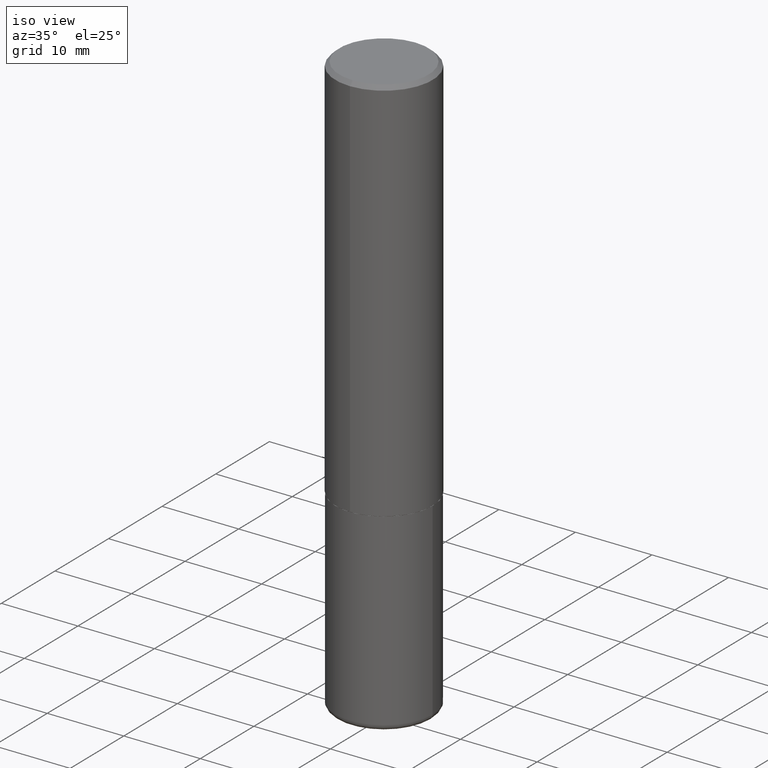
[diagram: clean part render]
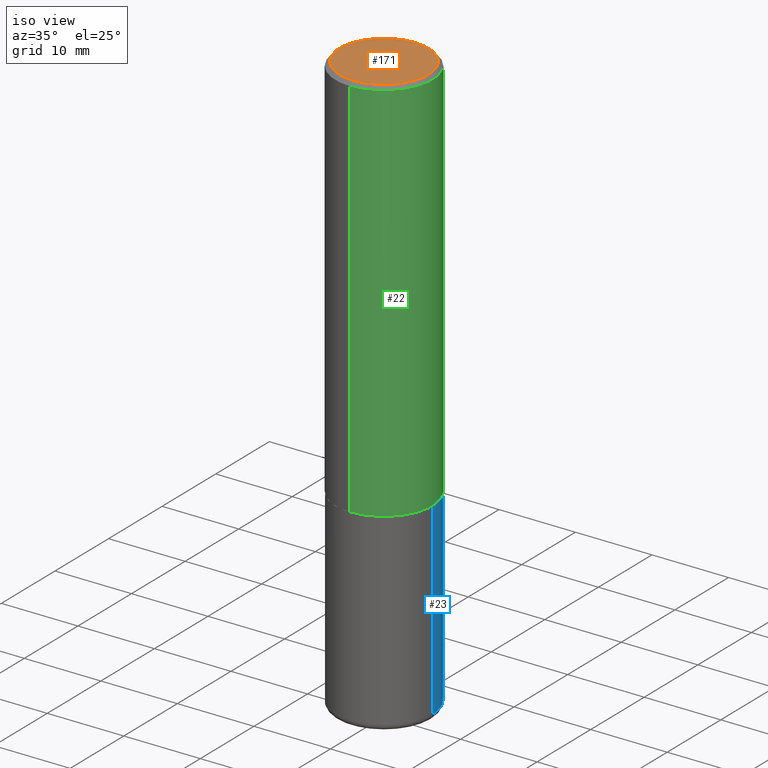
[diagram: same view with three faces highlighted in distinct colors, each labeled with its STEP entity id]
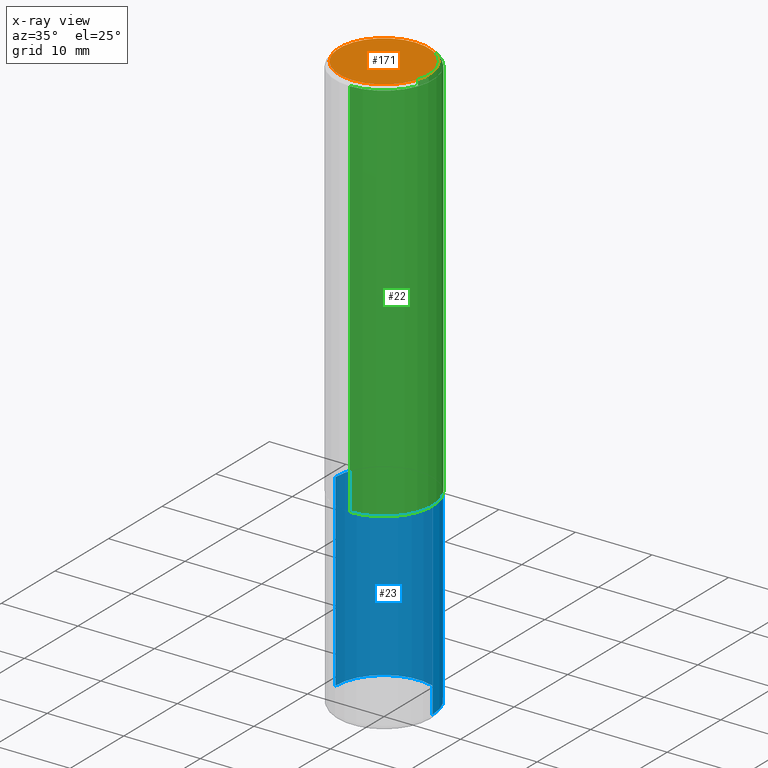
[diagram: x-ray of the same camera — body ghosted, the three highlighted faces saturated]
A machine part, iso view with three faces highlighted in distinct colors.
The next image is the same camera in x-ray (body ghosted, the three faces saturated) — at least one of them is partly hidden behind the body in this view.
Their STEP definitions:

[orange] entity #171 — the highlighted planar face has unit normal (0, -0, -1).
#13 = CARTESIAN_POINT ( 'NONE',  ( 1.606081415867842645E-15, 0.2300000000000002043, -8.970083069684097739E-16 ) ) ;
#34 = ORIENTED_EDGE ( 'NONE', *, *, #197, .T. ) ;
#42 = AXIS2_PLACEMENT_3D ( 'NONE', #277, #332, #297 ) ;
#52 = EDGE_CURVE ( 'NONE', #415, #338, #181, .T. ) ;
#77 = DIRECTION ( 'NONE',  ( -6.982962677686265922E-15, -1.000000000000000000, 3.492005897558592316E-15 ) ) ;
#93 = PLANE ( 'NONE',  #189 ) ;
#97 = CARTESIAN_POINT ( 'NONE',  ( 1.675911042644704760E-15, 0.2300000000000002043, -9.908552574983423647E-16 ) ) ;
#111 = CARTESIAN_POINT ( 'NONE',  ( 4.589308283664181382E-45, -6.554282094368286806E-31, -1.876939010598653295E-16 ) ) ;
#118 = DIRECTION ( 'NONE',  ( 6.982962677686265922E-15, 1.000000000000000000, -3.492005897558592710E-15 ) ) ;
#143 = DIRECTION ( 'NONE',  ( 2.445102508791913971E-29, -3.492005897558592710E-15, -1.000000000000000000 ) ) ;
#164 = DIRECTION ( 'NONE',  ( -2.445102508791914532E-29, 3.492005897558592316E-15, 1.000000000000000000 ) ) ;
#171 = ADVANCED_FACE ( 'NONE', ( #363 ), #93, .F. ) ;
#181 = CIRCLE ( 'NONE', #339, 0.2300000000000002043 ) ;
#189 = AXIS2_PLACEMENT_3D ( 'NONE', #13, #143, #118 ) ;
#197 = EDGE_CURVE ( 'NONE', #338, #415, #352, .T. ) ;
#253 = CARTESIAN_POINT ( 'NONE',  ( -1.646519519465167954E-15, -0.2300000000000002043, 6.154674553786116072E-16 ) ) ;
#277 = CARTESIAN_POINT ( 'NONE',  ( 4.589308283664181382E-45, -6.554282094368286806E-31, -1.876939010598653295E-16 ) ) ;
#297 = DIRECTION ( 'NONE',  ( -6.982962677686265922E-15, -1.000000000000000000, 3.492005897558592316E-15 ) ) ;
#310 = EDGE_LOOP ( 'NONE', ( #313, #34 ) ) ;
#313 = ORIENTED_EDGE ( 'NONE', *, *, #52, .T. ) ;
#332 = DIRECTION ( 'NONE',  ( -2.445102508791914532E-29, 3.492005897558592316E-15, 1.000000000000000000 ) ) ;
#338 = VERTEX_POINT ( 'NONE', #253 ) ;
#339 = AXIS2_PLACEMENT_3D ( 'NONE', #111, #164, #77 ) ;
#352 = CIRCLE ( 'NONE', #42, 0.2300000000000002043 ) ;
#363 = FACE_OUTER_BOUND ( 'NONE', #310, .T. ) ;
#415 = VERTEX_POINT ( 'NONE', #97 ) ;

[blue] entity #23 — the highlighted cylindrical surface (partial cylindrical patch) has radius 6.35 mm, axis along (-0, 0, 1).
#2 = AXIS2_PLACEMENT_3D ( 'NONE', #237, #38, #359 ) ;
#23 = ADVANCED_FACE ( 'NONE', ( #78 ), #294, .T. ) ;
#25 = AXIS2_PLACEMENT_3D ( 'NONE', #49, #354, #387 ) ;
#26 = CARTESIAN_POINT ( 'NONE',  ( -0.2500000000000000000, -6.899974287624967004E-15, -2.000000000000000444 ) ) ;
#30 = VERTEX_POINT ( 'NONE', #388 ) ;
#38 = DIRECTION ( 'NONE',  ( -2.445468806185136597E-29, 3.491481338843145583E-15, 1.000000000000000000 ) ) ;
#39 = EDGE_CURVE ( 'NONE', #30, #315, #384, .T. ) ;
#41 = EDGE_CURVE ( 'NONE', #167, #323, #158, .T. ) ;
#49 = CARTESIAN_POINT ( 'NONE',  ( 4.890937612370273754E-29, -6.982962677686291954E-15, -2.000000000000000444 ) ) ;
#64 = ORIENTED_EDGE ( 'NONE', *, *, #41, .F. ) ;
#69 = LINE ( 'NONE', #216, #79 ) ;
#78 = FACE_OUTER_BOUND ( 'NONE', #353, .T. ) ;
#79 = VECTOR ( 'NONE', #136, 39.37007874015748143 ) ;
#82 = DIRECTION ( 'NONE',  ( -2.445468806185136597E-29, 3.491481338843145583E-15, 1.000000000000000000 ) ) ;
#96 = ORIENTED_EDGE ( 'NONE', *, *, #39, .T. ) ;
#128 = CARTESIAN_POINT ( 'NONE',  ( -0.2500000000000000000, 1.776356839400250465E-15, -1.229733772563726445E-29 ) ) ;
#136 = DIRECTION ( 'NONE',  ( -2.445468806185136877E-29, 3.491481338843145188E-15, 1.000000000000000000 ) ) ;
#158 = CIRCLE ( 'NONE', #25, 0.2500000000000000000 ) ;
#166 = ORIENTED_EDGE ( 'NONE', *, *, #305, .T. ) ;
#167 = VERTEX_POINT ( 'NONE', #241 ) ;
#180 = AXIS2_PLACEMENT_3D ( 'NONE', #391, #82, #229 ) ;
#183 = LINE ( 'NONE', #128, #248 ) ;
#216 = CARTESIAN_POINT ( 'NONE',  ( 0.2500000000000000000, -1.745740669421566678E-15, 1.219044193948983948E-29 ) ) ;
#229 = DIRECTION ( 'NONE',  ( 1.000000000000000000, -6.982962677686266711E-15, 4.876176775795935793E-29 ) ) ;
#237 = CARTESIAN_POINT ( 'NONE',  ( 7.263042354369856275E-29, -1.036969957636414298E-14, -2.970000000000000195 ) ) ;
#241 = CARTESIAN_POINT ( 'NONE',  ( 0.2500000000000000000, -8.728703347107858632E-15, -2.000000000000000444 ) ) ;
#248 = VECTOR ( 'NONE', #279, 39.37007874015748143 ) ;
#257 = CARTESIAN_POINT ( 'NONE',  ( -0.2499999999999998612, -8.593342736963892519E-15, -2.970000000000000195 ) ) ;
#279 = DIRECTION ( 'NONE',  ( -2.445468806185136877E-29, 3.491481338843145188E-15, 1.000000000000000000 ) ) ;
#289 = ORIENTED_EDGE ( 'NONE', *, *, #348, .F. ) ;
#294 = CYLINDRICAL_SURFACE ( 'NONE', #180, 0.2500000000000000000 ) ;
#305 = EDGE_CURVE ( 'NONE', #315, #323, #183, .T. ) ;
#315 = VERTEX_POINT ( 'NONE', #257 ) ;
#323 = VERTEX_POINT ( 'NONE', #26 ) ;
#348 = EDGE_CURVE ( 'NONE', #30, #167, #69, .T. ) ;
#353 = EDGE_LOOP ( 'NONE', ( #96, #166, #64, #289 ) ) ;
#354 = DIRECTION ( 'NONE',  ( -2.445468806185136597E-29, 3.491481338843145583E-15, 1.000000000000000000 ) ) ;
#359 = DIRECTION ( 'NONE',  ( 1.000000000000000000, -6.982962677686270655E-15, 0.000000000000000000 ) ) ;
#384 = CIRCLE ( 'NONE', #2, 0.2500000000000000000 ) ;
#387 = DIRECTION ( 'NONE',  ( 1.000000000000000000, -6.982962677686266711E-15, 0.000000000000000000 ) ) ;
#388 = CARTESIAN_POINT ( 'NONE',  ( 0.2499999999999998612, -1.211544024578571124E-14, -2.970000000000000195 ) ) ;
#391 = CARTESIAN_POINT ( 'NONE',  ( 0.000000000000000000, 0.000000000000000000, 0.000000000000000000 ) ) ;

[green] entity #22 — the highlighted cylindrical surface (partial cylindrical patch) has radius 6.35 mm, axis along (-0, 0, 1).
#7 = ORIENTED_EDGE ( 'NONE', *, *, #290, .F. ) ;
#12 = FACE_OUTER_BOUND ( 'NONE', #134, .T. ) ;
#22 = ADVANCED_FACE ( 'NONE', ( #12 ), #80, .T. ) ;
#65 = VECTOR ( 'NONE', #242, 39.37007874015748143 ) ;
#80 = CYLINDRICAL_SURFACE ( 'NONE', #273, 0.2500000000000001110 ) ;
#83 = ORIENTED_EDGE ( 'NONE', *, *, #406, .T. ) ;
#109 = CARTESIAN_POINT ( 'NONE',  ( 0.000000000000000000, 0.000000000000000000, 0.000000000000000000 ) ) ;
#134 = EDGE_LOOP ( 'NONE', ( #83, #295, #223, #7 ) ) ;
#135 = EDGE_CURVE ( 'NONE', #218, #199, #278, .T. ) ;
#137 = VERTEX_POINT ( 'NONE', #210 ) ;
#155 = LINE ( 'NONE', #413, #261 ) ;
#199 = VERTEX_POINT ( 'NONE', #400 ) ;
#210 = CARTESIAN_POINT ( 'NONE',  ( -1.745740669421519346E-15, -0.2500000000000072164, -1.998999999999999444 ) ) ;
#212 = CARTESIAN_POINT ( 'NONE',  ( 1.776356839400276103E-15, 0.2499999999999933109, -1.999000000000000998 ) ) ;
#218 = VERTEX_POINT ( 'NONE', #212 ) ;
#223 = ORIENTED_EDGE ( 'NONE', *, *, #249, .F. ) ;
#224 = CARTESIAN_POINT ( 'NONE',  ( -1.715124499442882496E-15, -0.2500000000000001110, -0.01999999999999918163 ) ) ;
#242 = DIRECTION ( 'NONE',  ( -2.445102508791914532E-29, 3.492005897558592710E-15, 1.000000000000000000 ) ) ;
#249 = EDGE_CURVE ( 'NONE', #393, #199, #377, .T. ) ;
#251 = CARTESIAN_POINT ( 'NONE',  ( 4.887759915075037439E-29, -6.980519789219626565E-15, -1.999000000000000110 ) ) ;
#261 = VECTOR ( 'NONE', #404, 39.37007874015748143 ) ;
#273 = AXIS2_PLACEMENT_3D ( 'NONE', #109, #357, #317 ) ;
#278 = LINE ( 'NONE', #369, #65 ) ;
#282 = CARTESIAN_POINT ( 'NONE',  ( 4.890205017583842726E-31, -6.984011795117202972E-17, -0.02000000000000005593 ) ) ;
#288 = DIRECTION ( 'NONE',  ( -6.982962677686265133E-15, -1.000000000000000000, 3.500180241882336472E-15 ) ) ;
#290 = EDGE_CURVE ( 'NONE', #137, #393, #155, .T. ) ;
#295 = ORIENTED_EDGE ( 'NONE', *, *, #135, .T. ) ;
#308 = CIRCLE ( 'NONE', #403, 0.2500000000000002220 ) ;
#317 = DIRECTION ( 'NONE',  ( -6.982962677686266711E-15, -1.000000000000000000, 3.492005897558592710E-15 ) ) ;
#333 = AXIS2_PLACEMENT_3D ( 'NONE', #282, #411, #288 ) ;
#345 = DIRECTION ( 'NONE',  ( -6.982962677686266711E-15, -1.000000000000000000, 3.278217592397113101E-15 ) ) ;
#357 = DIRECTION ( 'NONE',  ( -2.445102508791914532E-29, 3.492005897558592316E-15, 1.000000000000000000 ) ) ;
#369 = CARTESIAN_POINT ( 'NONE',  ( 1.776356839400251254E-15, 0.2500000000000001110, -8.730014743896485719E-16 ) ) ;
#374 = DIRECTION ( 'NONE',  ( -2.445102508791914532E-29, 3.492005897558592316E-15, 1.000000000000000000 ) ) ;
#377 = CIRCLE ( 'NONE', #333, 0.2500000000000000555 ) ;
#393 = VERTEX_POINT ( 'NONE', #224 ) ;
#400 = CARTESIAN_POINT ( 'NONE',  ( 1.745740669421567269E-15, 0.2499999999999999722, -0.02000000000000093023 ) ) ;
#403 = AXIS2_PLACEMENT_3D ( 'NONE', #251, #374, #345 ) ;
#404 = DIRECTION ( 'NONE',  ( -2.445102508791914532E-29, 3.492005897558592710E-15, 1.000000000000000000 ) ) ;
#406 = EDGE_CURVE ( 'NONE', #137, #218, #308, .T. ) ;
#411 = DIRECTION ( 'NONE',  ( -2.445102508791914532E-29, 3.492005897558592316E-15, 1.000000000000000000 ) ) ;
#413 = CARTESIAN_POINT ( 'NONE',  ( -1.745740669421567467E-15, -0.2500000000000001110, 8.730014743896485719E-16 ) ) ;